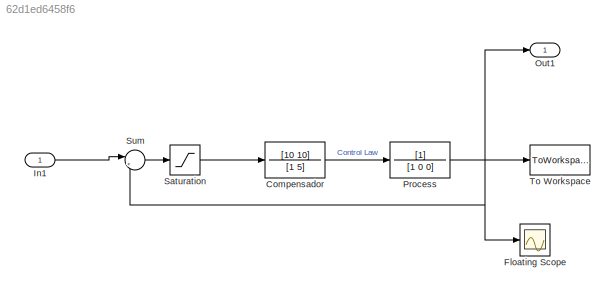
MODEL slx_62d1ed6458f6
KIND model
BLOCK [TransferFcn] Compensador
  Denominator = [1 5]
  Numerator = [10 10]
BLOCK [Scope] Floating Scope
  DataFormat = StructureWithTime
  Floating = off
  NumInputPorts = 1
  Ports = [1]
  SampleTime = 0
  SaveToWorkspace = on
  ShowLegends = off
BLOCK [Inport] In1
  IconDisplay = Port number
BLOCK [Outport] Out1
  IconDisplay = Port number
BLOCK [TransferFcn] Process
  Denominator = [1 0 0]
BLOCK [Saturate] Saturation
  InputPortMap = u0
  LowerLimit = -1
  Ports = [1, 1]
  UpperLimit = 1
BLOCK [Sum] Sum
  IconShape = round
  InputSameDT = off
  Inputs = |+|-
  OutDataTypeStr = Inherit: Inherit via internal rule
  Ports = [2, 1]
  SaturateOnIntegerOverflow = off
BLOCK [ToWorkspace] To Workspace
  MaxDataPoints = inf
  Ports = [1]
  SampleTime = -1
  SaveFormat = Timeseries
  VariableName = y
LINE Compensador:1 -> Process:1
LINE In1:1 -> Sum:1
NET Process:1 -> Floating Scope:1, Out1:1, Sum:2, To Workspace:1
LINE Saturation:1 -> Compensador:1
LINE Sum:1 -> Saturation:1
note: NET lines group one-source signal fan-out (src -> all destinations, sorted); 1:1 wires keep LINE
